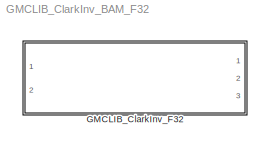
MODEL GMCLIB_ClarkInv_BAM_F32
KIND model
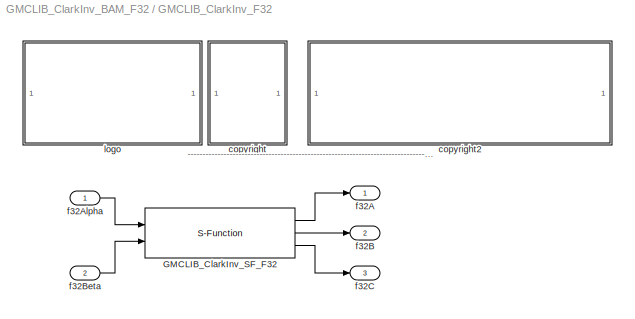
BLOCK [SubSystem] GMCLIB_ClarkInv_F32
  FunctionWithSeparateData = off
  MaskDescription = Bit accurate model of inverse Clarke transformation 2ph -> 3ph
  MaskDisplay = color('black');port_label('input',1,'f32Alpha');port_label('input',2,'f32Beta');port_label('output',1,'f32A');port_label('output',2,'f32B');port_label('output',3,'f32C');color('black');disp('GMCLIB_ClarkInv_F32');color('blue');text(tX,tY, 'BAM', 'horizontalAlignment', 'center');
  MaskHideContents = off
  MaskIconFrame = on
  MaskIconOpaque = on
  MaskIconRotate = none
  MaskIconUnits = pixels
  MaskInitialization = pos = get_param(gcb, 'Position');width = pos(3) - pos(1); height = pos(4) - pos(2);tX=width/2;tY=height*0.9;
  MaskPortRotate = default
  MaskType = GMCLIB_ClarkInv_F32
  MinAlgLoopOccurrences = off
  Opaque = off
  Ports = [2, 3]
  PropExecContextOutsideSubsystem = off
  RTWSystemCode = Auto
  RequestExecContextInheritance = off
BLOCK [S-Function] GMCLIB_ClarkInv_F32/GMCLIB_ClarkInv_SF_F32
  EnableBusSupport = off
  FunctionName = GMCLIB_ClarkInv_SF_F32
  Ports = [2, 3]
BLOCK [SubSystem] GMCLIB_ClarkInv_F32/<copyright redacted>
  FunctionWithSeparateData = off
  MaskDisplay = text(10,90,'FILE:');text(10,75,'DESRIPTION:')text(10,60,'<copyright redacted>
  MaskHideContents = off
  MaskIconFrame = off
  MaskIconOpaque = on
  MaskIconRotate = none
  MaskIconUnits = pixels
  MaskPortRotate = default
  MinAlgLoopOccurrences = off
  Opaque = off
  Ports = []
  PropExecContextOutsideSubsystem = off
  RTWSystemCode = Auto
  RequestExecContextInheritance = off
BLOCK [SubSystem] GMCLIB_ClarkInv_F32/copyright2
  FunctionWithSeparateData = off
  MaskDisplay = text(10,90,'GMCLIB_ClarkInv_BAM_F32.mdl');text(10,75,'Inverse Clarke transformation');text(10,60,'Freescale')text(10,45,'0.1');text(10,30,'30-Aug-2011');
  MaskHideContents = off
  MaskIconFrame = off
  MaskIconOpaque = on
  MaskIconRotate = none
  MaskIconUnits = pixels
  MaskPortRotate = default
  MinAlgLoopOccurrences = off
  Opaque = off
  Ports = []
  PropExecContextOutsideSubsystem = off
  RTWSystemCode = Auto
  RequestExecContextInheritance = off
BLOCK [Outport] GMCLIB_ClarkInv_F32/f32A
  IconDisplay = Port number
  OutDataType = fixdt(1, 16)
  OutScaling = 2^0
BLOCK [Inport] GMCLIB_ClarkInv_F32/f32Alpha
  IconDisplay = Port number
  OutDataType = fixdt(1, 16)
  OutScaling = 2^0
BLOCK [Outport] GMCLIB_ClarkInv_F32/f32B
  IconDisplay = Port number
  OutDataType = fixdt(1, 16)
  OutScaling = 2^0
  Port = 2
BLOCK [Inport] GMCLIB_ClarkInv_F32/f32Beta
  IconDisplay = Port number
  OutDataType = fixdt(1, 16)
  OutScaling = 2^0
  Port = 2
BLOCK [Outport] GMCLIB_ClarkInv_F32/f32C
  IconDisplay = Port number
  OutDataType = fixdt(1, 16)
  OutScaling = 2^0
  Port = 3
BLOCK [SubSystem] GMCLIB_ClarkInv_F32/logo
  FunctionWithSeparateData = off
  MaskDisplay = image(imread('logo.jpg'))
  MaskHideContents = off
  MaskIconFrame = off
  MaskIconOpaque = on
  MaskIconRotate = none
  MaskIconUnits = autoscale
  MaskPortRotate = default
  MinAlgLoopOccurrences = off
  Opaque = off
  Ports = []
  PropExecContextOutsideSubsystem = off
  RTWSystemCode = Auto
  RequestExecContextInheritance = off
ANNOTATION GMCLIB_ClarkInv_F32: ---------------------------------------------------------------------------------------------------------------------------------------------------------------------------------------------------
LINE GMCLIB_ClarkInv_F32/GMCLIB_ClarkInv_SF_F32:1 -> GMCLIB_ClarkInv_F32/f32A:1
LINE GMCLIB_ClarkInv_F32/GMCLIB_ClarkInv_SF_F32:2 -> GMCLIB_ClarkInv_F32/f32B:1
LINE GMCLIB_ClarkInv_F32/GMCLIB_ClarkInv_SF_F32:3 -> GMCLIB_ClarkInv_F32/f32C:1
LINE GMCLIB_ClarkInv_F32/f32Alpha:1 -> GMCLIB_ClarkInv_F32/GMCLIB_ClarkInv_SF_F32:1
LINE GMCLIB_ClarkInv_F32/f32Beta:1 -> GMCLIB_ClarkInv_F32/GMCLIB_ClarkInv_SF_F32:2
